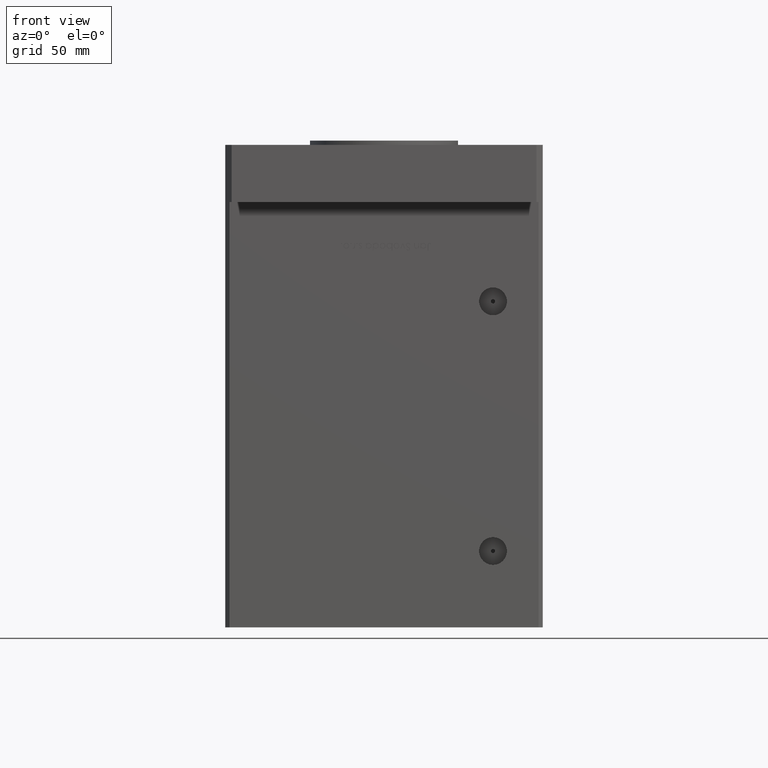
[diagram: clean part render]
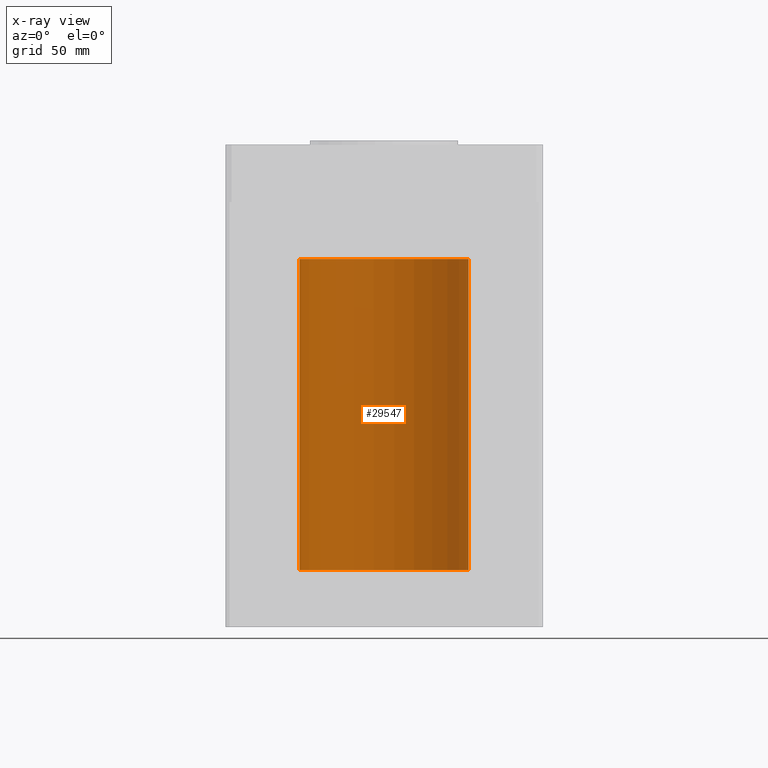
[diagram: x-ray — body ghosted, one internal face saturated and labeled with its STEP entity id]
A machine part, front view, then the same camera in x-ray: the body is ghosted and one INTERNAL B-rep face — a face not visible from any outside direction — is saturated and labeled: STEP entity #29547.
In plain terms, the highlighted cylindrical surface (partial cylindrical patch) has radius 40 mm, axis along (-0, -0, -1).
Its self-contained STEP definition (entity closure, byte-faithful):
#527 = FACE_OUTER_BOUND ( 'NONE', #29265, .T. ) ;
#547 = VECTOR ( 'NONE', #16909, 1000.000000000000000 ) ;
#2830 = VECTOR ( 'NONE', #45222, 1000.000000000000000 ) ;
#3333 = DIRECTION ( 'NONE',  ( 1.000000000000000000, 0.000000000000000000, 0.000000000000000000 ) ) ;
#3864 = DIRECTION ( 'NONE',  ( -0.000000000000000000, 0.000000000000000000, 1.000000000000000000 ) ) ;
#8376 = CYLINDRICAL_SURFACE ( 'NONE', #51414, 40.00000000000000000 ) ;
#9081 = EDGE_CURVE ( 'NONE', #22699, #16235, #25778, .T. ) ;
#10336 = CIRCLE ( 'NONE', #37101, 40.00000000000000000 ) ;
#11101 = AXIS2_PLACEMENT_3D ( 'NONE', #49086, #3864, #3333 ) ;
#11585 = EDGE_CURVE ( 'NONE', #12738, #21740, #10336, .T. ) ;
#11999 = CARTESIAN_POINT ( 'NONE',  ( -40.00000000000000000, 0.000000000000000000, 147.0000000000000000 ) ) ;
#12427 = DIRECTION ( 'NONE',  ( -1.000000000000000000, 0.000000000000000000, 0.000000000000000000 ) ) ;
#12738 = VERTEX_POINT ( 'NONE', #34568 ) ;
#16235 = VERTEX_POINT ( 'NONE', #39824 ) ;
#16909 = DIRECTION ( 'NONE',  ( -0.000000000000000000, -0.000000000000000000, -1.000000000000000000 ) ) ;
#18998 = CARTESIAN_POINT ( 'NONE',  ( 40.00000000000000000, 4.898587196589413026E-15, 0.000000000000000000 ) ) ;
#21341 = DIRECTION ( 'NONE',  ( -0.000000000000000000, -0.000000000000000000, -1.000000000000000000 ) ) ;
#21740 = VERTEX_POINT ( 'NONE', #11999 ) ;
#22699 = VERTEX_POINT ( 'NONE', #18998 ) ;
#24768 = CARTESIAN_POINT ( 'NONE',  ( 40.00000000000000000, 4.898587196589413026E-15, 147.0000000000000000 ) ) ;
#25778 = CIRCLE ( 'NONE', #11101, 40.00000000000000000 ) ;
#25938 = EDGE_CURVE ( 'NONE', #21740, #16235, #49281, .T. ) ;
#27477 = ORIENTED_EDGE ( 'NONE', *, *, #11585, .T. ) ;
#28687 = CARTESIAN_POINT ( 'NONE',  ( -40.00000000000000000, 0.000000000000000000, 147.0000000000000000 ) ) ;
#29265 = EDGE_LOOP ( 'NONE', ( #43408, #27477, #33574, #50834 ) ) ;
#29547 = ADVANCED_FACE ( 'NONE', ( #527 ), #8376, .F. ) ;
#32903 = LINE ( 'NONE', #24768, #547 ) ;
#33574 = ORIENTED_EDGE ( 'NONE', *, *, #25938, .T. ) ;
#34568 = CARTESIAN_POINT ( 'NONE',  ( 40.00000000000000000, 4.898587196589413026E-15, 147.0000000000000000 ) ) ;
#36531 = EDGE_CURVE ( 'NONE', #12738, #22699, #32903, .T. ) ;
#37067 = CARTESIAN_POINT ( 'NONE',  ( 0.000000000000000000, 0.000000000000000000, 147.0000000000000000 ) ) ;
#37101 = AXIS2_PLACEMENT_3D ( 'NONE', #46835, #39476, #51695 ) ;
#39476 = DIRECTION ( 'NONE',  ( -0.000000000000000000, 0.000000000000000000, 1.000000000000000000 ) ) ;
#39824 = CARTESIAN_POINT ( 'NONE',  ( -40.00000000000000000, 0.000000000000000000, 0.000000000000000000 ) ) ;
#43408 = ORIENTED_EDGE ( 'NONE', *, *, #36531, .F. ) ;
#45222 = DIRECTION ( 'NONE',  ( -0.000000000000000000, -0.000000000000000000, -1.000000000000000000 ) ) ;
#46835 = CARTESIAN_POINT ( 'NONE',  ( 0.000000000000000000, 0.000000000000000000, 147.0000000000000000 ) ) ;
#49086 = CARTESIAN_POINT ( 'NONE',  ( 0.000000000000000000, 0.000000000000000000, 0.000000000000000000 ) ) ;
#49281 = LINE ( 'NONE', #28687, #2830 ) ;
#50834 = ORIENTED_EDGE ( 'NONE', *, *, #9081, .F. ) ;
#51414 = AXIS2_PLACEMENT_3D ( 'NONE', #37067, #21341, #12427 ) ;
#51695 = DIRECTION ( 'NONE',  ( 1.000000000000000000, 0.000000000000000000, 0.000000000000000000 ) ) ;